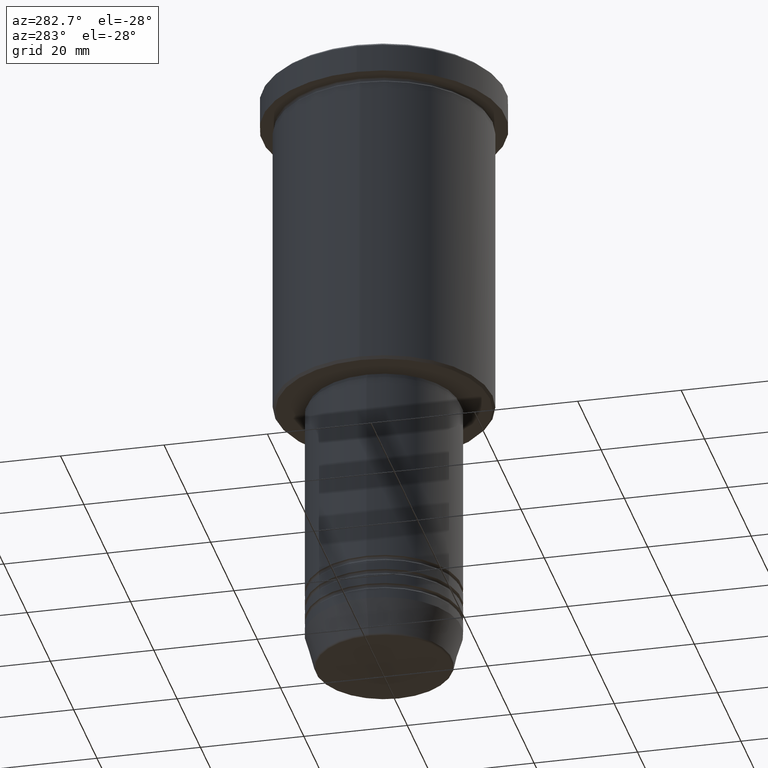
[diagram: clean part render]
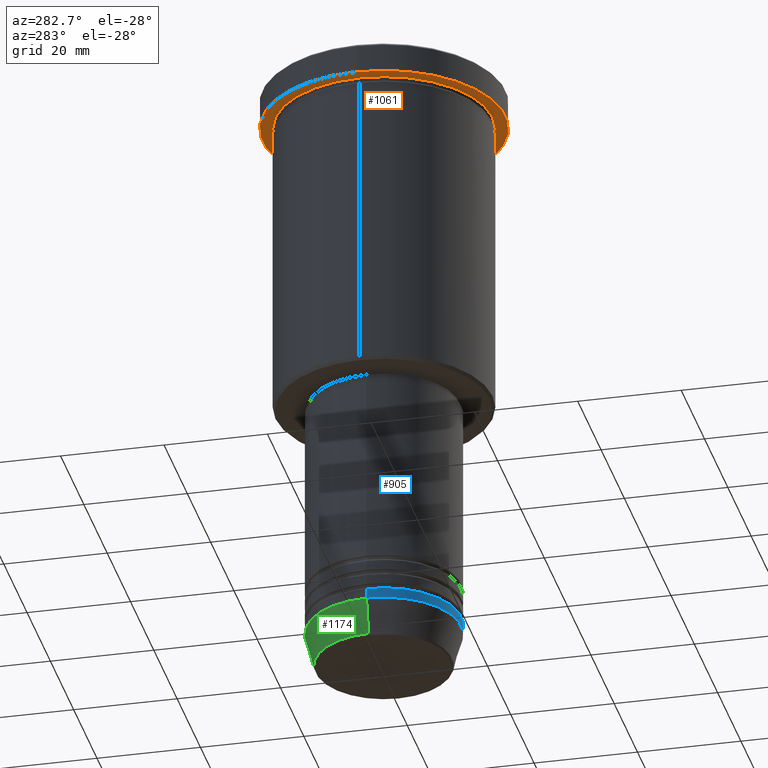
[diagram: same view with three faces highlighted in distinct colors, each labeled with its STEP entity id]
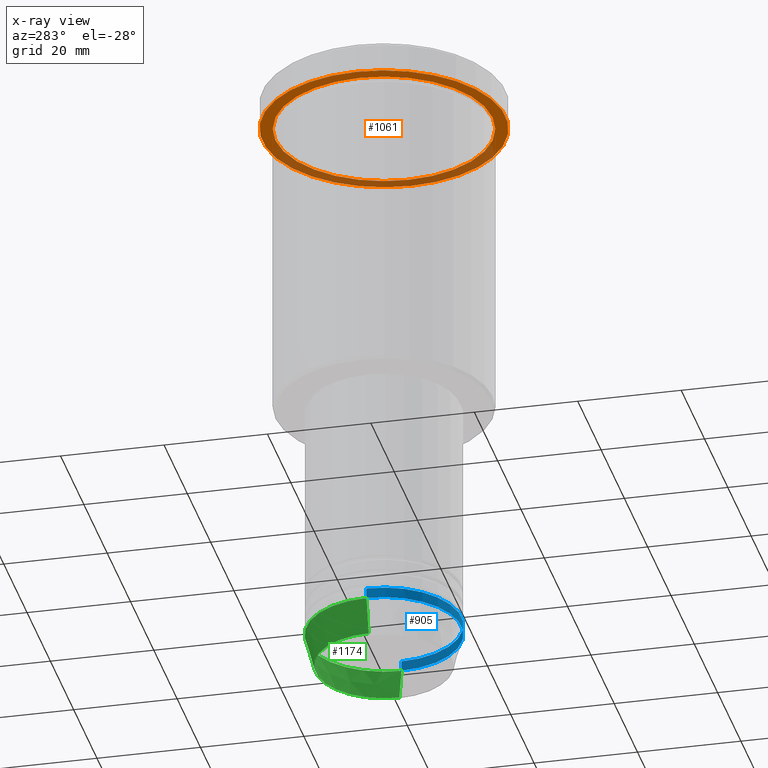
[diagram: x-ray of the same camera — body ghosted, the three highlighted faces saturated]
A machine part, auxiliary view with three faces highlighted in distinct colors.
The next image is the same camera in x-ray (body ghosted, the three faces saturated) — at least one of them is partly hidden behind the body in this view.
Their STEP definitions:

[orange] entity #1061 — the highlighted planar face has unit normal (0, 0, -1).
#24 = CIRCLE ( 'NONE', #291, 21.00000000000000000 ) ;
#46 = EDGE_LOOP ( 'NONE', ( #1152, #808 ) ) ;
#82 = FACE_OUTER_BOUND ( 'NONE', #46, .T. ) ;
#103 = AXIS2_PLACEMENT_3D ( 'NONE', #326, #1059, #442 ) ;
#115 = DIRECTION ( 'NONE',  ( -1.000000000000000000, 0.000000000000000000, 0.000000000000000000 ) ) ;
#121 = CARTESIAN_POINT ( 'NONE',  ( -23.50000000000000000, 2.877919977996280320E-15, -5.999999999999994671 ) ) ;
#176 = FACE_BOUND ( 'NONE', #251, .T. ) ;
#194 = DIRECTION ( 'NONE',  ( 0.000000000000000000, 0.000000000000000000, -1.000000000000000000 ) ) ;
#222 = VERTEX_POINT ( 'NONE', #951 ) ;
#230 = EDGE_CURVE ( 'NONE', #222, #232, #24, .T. ) ;
#232 = VERTEX_POINT ( 'NONE', #308 ) ;
#251 = EDGE_LOOP ( 'NONE', ( #680, #907 ) ) ;
#252 = CARTESIAN_POINT ( 'NONE',  ( 0.000000000000000000, 23.50000000000000000, -5.999999999999994671 ) ) ;
#270 = DIRECTION ( 'NONE',  ( -1.000000000000000000, 0.000000000000000000, 0.000000000000000000 ) ) ;
#287 = PLANE ( 'NONE',  #316 ) ;
#291 = AXIS2_PLACEMENT_3D ( 'NONE', #582, #1026, #115 ) ;
#308 = CARTESIAN_POINT ( 'NONE',  ( 21.00000000000000000, 2.571758278209441661E-15, -5.999999999999994671 ) ) ;
#316 = AXIS2_PLACEMENT_3D ( 'NONE', #252, #194, #365 ) ;
#326 = CARTESIAN_POINT ( 'NONE',  ( 0.000000000000000000, 0.000000000000000000, -5.999999999999994671 ) ) ;
#348 = CARTESIAN_POINT ( 'NONE',  ( 0.000000000000000000, 0.000000000000000000, -5.999999999999994671 ) ) ;
#365 = DIRECTION ( 'NONE',  ( -1.000000000000000000, 0.000000000000000000, -0.000000000000000000 ) ) ;
#382 = CARTESIAN_POINT ( 'NONE',  ( 0.000000000000000000, 0.000000000000000000, -5.999999999999994671 ) ) ;
#442 = DIRECTION ( 'NONE',  ( 1.000000000000000000, 0.000000000000000000, 0.000000000000000000 ) ) ;
#550 = AXIS2_PLACEMENT_3D ( 'NONE', #382, #823, #270 ) ;
#582 = CARTESIAN_POINT ( 'NONE',  ( 0.000000000000000000, 0.000000000000000000, -5.999999999999994671 ) ) ;
#588 = EDGE_CURVE ( 'NONE', #232, #222, #685, .T. ) ;
#680 = ORIENTED_EDGE ( 'NONE', *, *, #230, .T. ) ;
#685 = CIRCLE ( 'NONE', #550, 21.00000000000000000 ) ;
#690 = CIRCLE ( 'NONE', #928, 23.50000000000000000 ) ;
#717 = DIRECTION ( 'NONE',  ( -0.000000000000000000, -0.000000000000000000, 1.000000000000000000 ) ) ;
#790 = CARTESIAN_POINT ( 'NONE',  ( 23.50000000000000000, 0.000000000000000000, -5.999999999999994671 ) ) ;
#808 = ORIENTED_EDGE ( 'NONE', *, *, #868, .F. ) ;
#823 = DIRECTION ( 'NONE',  ( -0.000000000000000000, -0.000000000000000000, 1.000000000000000000 ) ) ;
#825 = VERTEX_POINT ( 'NONE', #121 ) ;
#868 = EDGE_CURVE ( 'NONE', #825, #886, #1131, .T. ) ;
#886 = VERTEX_POINT ( 'NONE', #790 ) ;
#907 = ORIENTED_EDGE ( 'NONE', *, *, #588, .T. ) ;
#928 = AXIS2_PLACEMENT_3D ( 'NONE', #348, #717, #1071 ) ;
#951 = CARTESIAN_POINT ( 'NONE',  ( -21.00000000000000000, 0.000000000000000000, -5.999999999999994671 ) ) ;
#1026 = DIRECTION ( 'NONE',  ( -0.000000000000000000, -0.000000000000000000, 1.000000000000000000 ) ) ;
#1059 = DIRECTION ( 'NONE',  ( -0.000000000000000000, -0.000000000000000000, 1.000000000000000000 ) ) ;
#1061 = ADVANCED_FACE ( 'NONE', ( #176, #82 ), #287, .T. ) ;
#1071 = DIRECTION ( 'NONE',  ( 1.000000000000000000, 0.000000000000000000, 0.000000000000000000 ) ) ;
#1102 = EDGE_CURVE ( 'NONE', #886, #825, #690, .T. ) ;
#1131 = CIRCLE ( 'NONE', #103, 23.50000000000000000 ) ;
#1152 = ORIENTED_EDGE ( 'NONE', *, *, #1102, .F. ) ;

[blue] entity #905 — the highlighted cylindrical surface (partial cylindrical patch) has radius 15 mm, axis along (-0, -0, 1).
#43 = CARTESIAN_POINT ( 'NONE',  ( -15.00000000000000000, 1.836970198721029589E-15, -114.0000000000000142 ) ) ;
#126 = LINE ( 'NONE', #223, #1095 ) ;
#160 = FACE_OUTER_BOUND ( 'NONE', #980, .T. ) ;
#161 = AXIS2_PLACEMENT_3D ( 'NONE', #406, #597, #841 ) ;
#184 = AXIS2_PLACEMENT_3D ( 'NONE', #576, #659, #453 ) ;
#203 = VECTOR ( 'NONE', #409, 1000.000000000000000 ) ;
#223 = CARTESIAN_POINT ( 'NONE',  ( 15.00000000000000000, 0.000000000000000000, 0.000000000000000000 ) ) ;
#236 = DIRECTION ( 'NONE',  ( 1.000000000000000000, 0.000000000000000000, 0.000000000000000000 ) ) ;
#275 = EDGE_CURVE ( 'NONE', #460, #859, #583, .T. ) ;
#406 = CARTESIAN_POINT ( 'NONE',  ( 0.000000000000000000, 0.000000000000000000, -114.0000000000000142 ) ) ;
#409 = DIRECTION ( 'NONE',  ( -0.000000000000000000, -0.000000000000000000, 1.000000000000000000 ) ) ;
#417 = DIRECTION ( 'NONE',  ( -0.000000000000000000, -0.000000000000000000, 1.000000000000000000 ) ) ;
#427 = CARTESIAN_POINT ( 'NONE',  ( 15.00000000000000000, 0.000000000000000000, -114.0000000000000142 ) ) ;
#453 = DIRECTION ( 'NONE',  ( 1.000000000000000000, 0.000000000000000000, 0.000000000000000000 ) ) ;
#455 = LINE ( 'NONE', #486, #203 ) ;
#460 = VERTEX_POINT ( 'NONE', #43 ) ;
#486 = CARTESIAN_POINT ( 'NONE',  ( -15.00000000000000000, 1.836970198721029589E-15, 0.000000000000000000 ) ) ;
#525 = VERTEX_POINT ( 'NONE', #544 ) ;
#544 = CARTESIAN_POINT ( 'NONE',  ( -15.00000000000000000, 1.836970198721029589E-15, -112.0000000000000142 ) ) ;
#576 = CARTESIAN_POINT ( 'NONE',  ( 0.000000000000000000, 0.000000000000000000, -112.0000000000000142 ) ) ;
#583 = CIRCLE ( 'NONE', #161, 15.00000000000000000 ) ;
#597 = DIRECTION ( 'NONE',  ( -0.000000000000000000, -0.000000000000000000, 1.000000000000000000 ) ) ;
#601 = CYLINDRICAL_SURFACE ( 'NONE', #871, 15.00000000000000000 ) ;
#659 = DIRECTION ( 'NONE',  ( -0.000000000000000000, -0.000000000000000000, 1.000000000000000000 ) ) ;
#688 = EDGE_CURVE ( 'NONE', #460, #525, #455, .T. ) ;
#704 = CIRCLE ( 'NONE', #184, 15.00000000000000000 ) ;
#713 = ORIENTED_EDGE ( 'NONE', *, *, #275, .T. ) ;
#730 = ORIENTED_EDGE ( 'NONE', *, *, #1157, .T. ) ;
#841 = DIRECTION ( 'NONE',  ( 1.000000000000000000, 0.000000000000000000, 0.000000000000000000 ) ) ;
#859 = VERTEX_POINT ( 'NONE', #427 ) ;
#871 = AXIS2_PLACEMENT_3D ( 'NONE', #1053, #417, #236 ) ;
#905 = ADVANCED_FACE ( 'NONE', ( #160 ), #601, .T. ) ;
#935 = CARTESIAN_POINT ( 'NONE',  ( 15.00000000000000000, 0.000000000000000000, -112.0000000000000142 ) ) ;
#953 = DIRECTION ( 'NONE',  ( -0.000000000000000000, -0.000000000000000000, 1.000000000000000000 ) ) ;
#971 = VERTEX_POINT ( 'NONE', #935 ) ;
#980 = EDGE_LOOP ( 'NONE', ( #1063, #713, #730, #1058 ) ) ;
#1009 = EDGE_CURVE ( 'NONE', #525, #971, #704, .T. ) ;
#1053 = CARTESIAN_POINT ( 'NONE',  ( 0.000000000000000000, 0.000000000000000000, 0.000000000000000000 ) ) ;
#1058 = ORIENTED_EDGE ( 'NONE', *, *, #1009, .F. ) ;
#1063 = ORIENTED_EDGE ( 'NONE', *, *, #688, .F. ) ;
#1095 = VECTOR ( 'NONE', #953, 1000.000000000000000 ) ;
#1157 = EDGE_CURVE ( 'NONE', #859, #971, #126, .T. ) ;

[green] entity #1174 — the highlighted conical surface has half-angle 15 deg.
#43 = CARTESIAN_POINT ( 'NONE',  ( -15.00000000000000000, 1.836970198721029589E-15, -114.0000000000000142 ) ) ;
#47 = CARTESIAN_POINT ( 'NONE',  ( -13.22365507213718949, 1.728200442216588386E-15, -120.6294095225512564 ) ) ;
#87 = DIRECTION ( 'NONE',  ( 0.2588190451025213501, 0.000000000000000000, 0.9659258262890680902 ) ) ;
#93 = EDGE_CURVE ( 'NONE', #267, #859, #820, .T. ) ;
#100 = CIRCLE ( 'NONE', #774, 13.22365507213718949 ) ;
#124 = CARTESIAN_POINT ( 'NONE',  ( 13.22365507213718949, 0.000000000000000000, -120.6294095225512564 ) ) ;
#131 = FACE_OUTER_BOUND ( 'NONE', #999, .T. ) ;
#132 = EDGE_CURVE ( 'NONE', #859, #460, #959, .T. ) ;
#147 = ORIENTED_EDGE ( 'NONE', *, *, #93, .F. ) ;
#182 = VECTOR ( 'NONE', #247, 1000.000000000000000 ) ;
#206 = EDGE_CURVE ( 'NONE', #267, #1119, #100, .T. ) ;
#231 = CARTESIAN_POINT ( 'NONE',  ( -15.00000000000000000, 1.836970198721029589E-15, -114.0000000000000142 ) ) ;
#247 = DIRECTION ( 'NONE',  ( -0.2588190451025213501, 3.169619151431772337E-17, 0.9659258262890680902 ) ) ;
#267 = VERTEX_POINT ( 'NONE', #124 ) ;
#285 = DIRECTION ( 'NONE',  ( 1.000000000000000000, 0.000000000000000000, 0.000000000000000000 ) ) ;
#360 = DIRECTION ( 'NONE',  ( -0.000000000000000000, -0.000000000000000000, 1.000000000000000000 ) ) ;
#383 = CARTESIAN_POINT ( 'NONE',  ( 0.000000000000000000, 0.000000000000000000, -120.6294095225512564 ) ) ;
#420 = ORIENTED_EDGE ( 'NONE', *, *, #132, .F. ) ;
#427 = CARTESIAN_POINT ( 'NONE',  ( 15.00000000000000000, 0.000000000000000000, -114.0000000000000142 ) ) ;
#435 = EDGE_CURVE ( 'NONE', #1119, #460, #978, .T. ) ;
#449 = CARTESIAN_POINT ( 'NONE',  ( 0.000000000000000000, 0.000000000000000000, -114.0000000000000142 ) ) ;
#460 = VERTEX_POINT ( 'NONE', #43 ) ;
#505 = CARTESIAN_POINT ( 'NONE',  ( 0.000000000000000000, 0.000000000000000000, -114.0000000000000142 ) ) ;
#532 = AXIS2_PLACEMENT_3D ( 'NONE', #505, #1028, #848 ) ;
#645 = VECTOR ( 'NONE', #87, 1000.000000000000000 ) ;
#665 = AXIS2_PLACEMENT_3D ( 'NONE', #449, #360, #729 ) ;
#729 = DIRECTION ( 'NONE',  ( 1.000000000000000000, 0.000000000000000000, 0.000000000000000000 ) ) ;
#774 = AXIS2_PLACEMENT_3D ( 'NONE', #383, #1101, #285 ) ;
#820 = LINE ( 'NONE', #1183, #645 ) ;
#848 = DIRECTION ( 'NONE',  ( 1.000000000000000000, 0.000000000000000000, 0.000000000000000000 ) ) ;
#859 = VERTEX_POINT ( 'NONE', #427 ) ;
#896 = ORIENTED_EDGE ( 'NONE', *, *, #206, .T. ) ;
#959 = CIRCLE ( 'NONE', #665, 15.00000000000000000 ) ;
#967 = ORIENTED_EDGE ( 'NONE', *, *, #435, .T. ) ;
#978 = LINE ( 'NONE', #231, #182 ) ;
#999 = EDGE_LOOP ( 'NONE', ( #896, #967, #420, #147 ) ) ;
#1001 = CONICAL_SURFACE ( 'NONE', #532, 15.00000000000000000, 0.2617993877991500740 ) ;
#1028 = DIRECTION ( 'NONE',  ( -0.000000000000000000, -0.000000000000000000, 1.000000000000000000 ) ) ;
#1101 = DIRECTION ( 'NONE',  ( -0.000000000000000000, -0.000000000000000000, 1.000000000000000000 ) ) ;
#1119 = VERTEX_POINT ( 'NONE', #47 ) ;
#1174 = ADVANCED_FACE ( 'NONE', ( #131 ), #1001, .T. ) ;
#1183 = CARTESIAN_POINT ( 'NONE',  ( 15.00000000000000000, 0.000000000000000000, -114.0000000000000142 ) ) ;